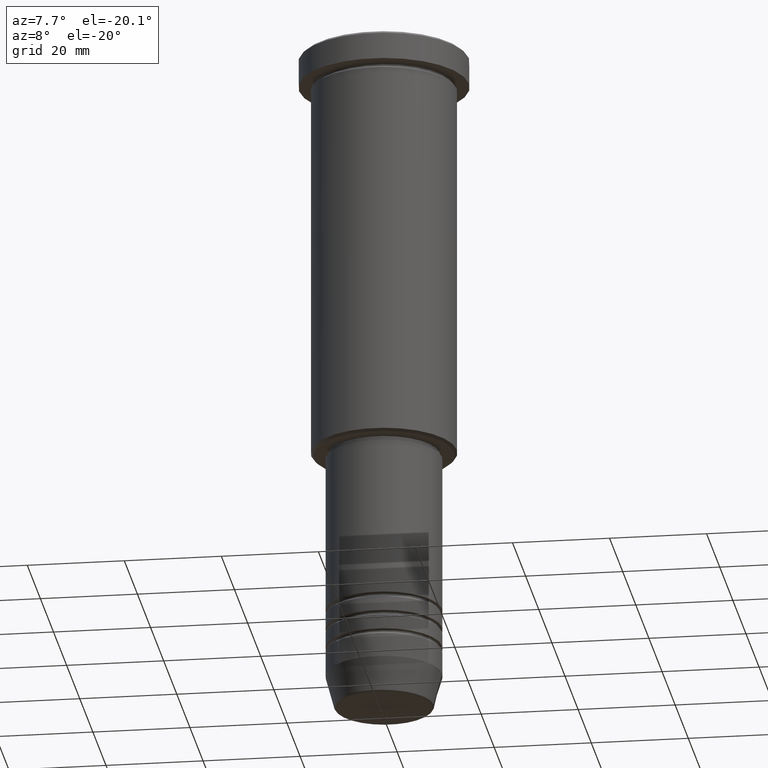
[diagram: clean part render]
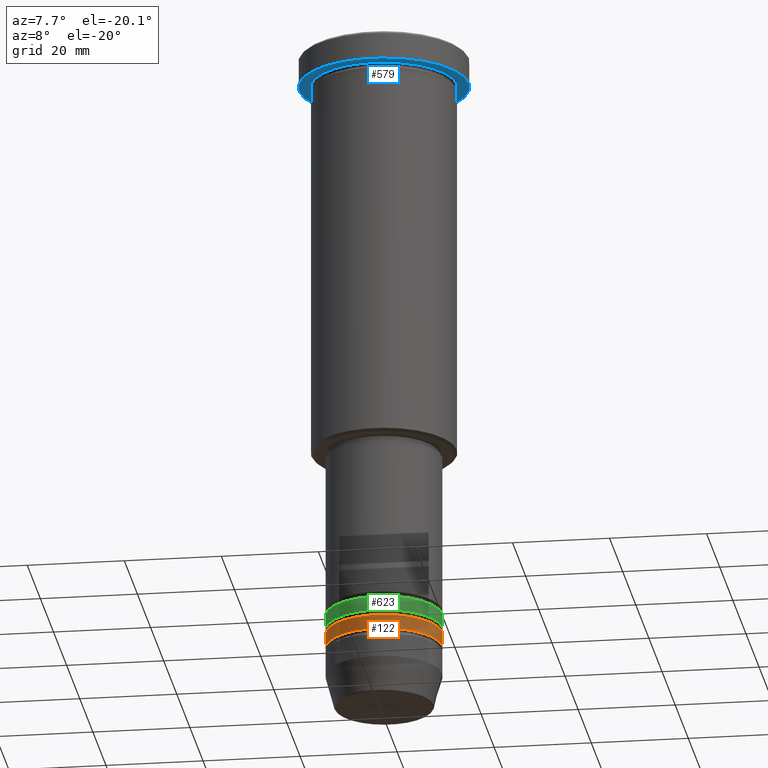
[diagram: same view with three faces highlighted in distinct colors, each labeled with its STEP entity id]
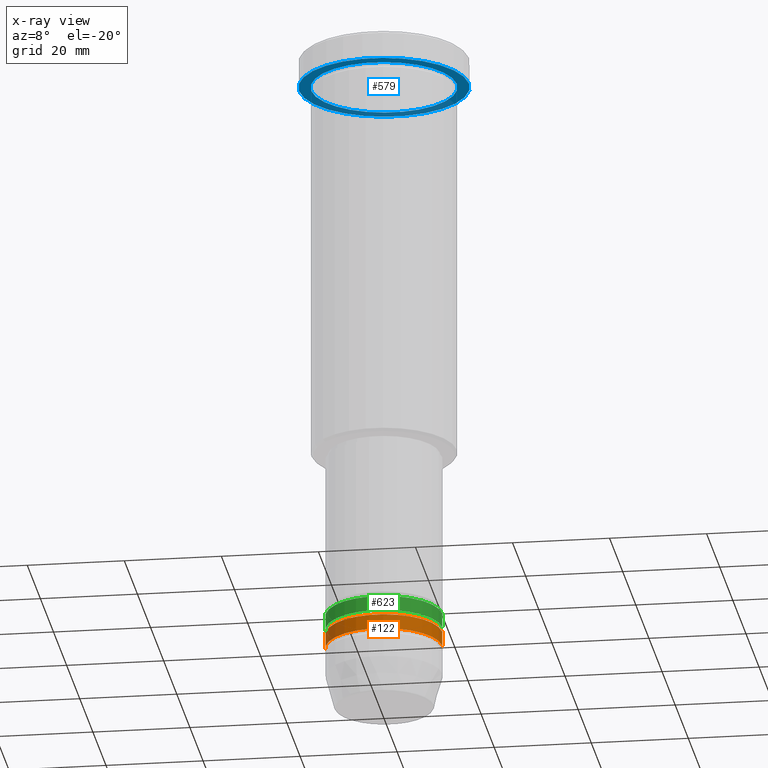
[diagram: x-ray of the same camera — body ghosted, the three highlighted faces saturated]
A machine part, auxiliary view with three faces highlighted in distinct colors.
The next image is the same camera in x-ray (body ghosted, the three faces saturated) — at least one of them is partly hidden behind the body in this view.
Their STEP definitions:

[orange] entity #122 — the highlighted cylindrical surface (partial cylindrical patch) has radius 12 mm, axis along (-0, -0, 1).
#13 = EDGE_CURVE ( 'NONE', #220, #150, #363, .T. ) ;
#17 = LINE ( 'NONE', #939, #967 ) ;
#18 = ORIENTED_EDGE ( 'NONE', *, *, #839, .T. ) ;
#51 = CARTESIAN_POINT ( 'NONE',  ( -12.00000000000000000, 1.469576158976823947E-15, 0.000000000000000000 ) ) ;
#103 = CARTESIAN_POINT ( 'NONE',  ( 0.000000000000000000, 0.000000000000000000, -127.9999999999998863 ) ) ;
#116 = DIRECTION ( 'NONE',  ( -0.000000000000000000, -0.000000000000000000, 1.000000000000000000 ) ) ;
#122 = ADVANCED_FACE ( 'NONE', ( #453 ), #629, .T. ) ;
#149 = ORIENTED_EDGE ( 'NONE', *, *, #13, .F. ) ;
#150 = VERTEX_POINT ( 'NONE', #359 ) ;
#167 = CARTESIAN_POINT ( 'NONE',  ( 12.00000000000000000, 0.000000000000000000, -127.9999999999998863 ) ) ;
#184 = DIRECTION ( 'NONE',  ( 1.000000000000000000, 0.000000000000000000, 0.000000000000000000 ) ) ;
#190 = DIRECTION ( 'NONE',  ( -0.000000000000000000, -0.000000000000000000, 1.000000000000000000 ) ) ;
#220 = VERTEX_POINT ( 'NONE', #277 ) ;
#221 = AXIS2_PLACEMENT_3D ( 'NONE', #103, #190, #184 ) ;
#234 = EDGE_CURVE ( 'NONE', #362, #735, #356, .T. ) ;
#261 = DIRECTION ( 'NONE',  ( -0.000000000000000000, -0.000000000000000000, 1.000000000000000000 ) ) ;
#277 = CARTESIAN_POINT ( 'NONE',  ( -12.00000000000000000, 1.469576158976823947E-15, -124.9999999999998863 ) ) ;
#329 = DIRECTION ( 'NONE',  ( -0.000000000000000000, -0.000000000000000000, 1.000000000000000000 ) ) ;
#356 = CIRCLE ( 'NONE', #221, 12.00000000000000000 ) ;
#359 = CARTESIAN_POINT ( 'NONE',  ( 12.00000000000000000, 0.000000000000000000, -124.9999999999998863 ) ) ;
#362 = VERTEX_POINT ( 'NONE', #1107 ) ;
#363 = CIRCLE ( 'NONE', #1034, 12.00000000000000000 ) ;
#447 = DIRECTION ( 'NONE',  ( 1.000000000000000000, 0.000000000000000000, 0.000000000000000000 ) ) ;
#453 = FACE_OUTER_BOUND ( 'NONE', #995, .T. ) ;
#460 = ORIENTED_EDGE ( 'NONE', *, *, #234, .T. ) ;
#522 = ORIENTED_EDGE ( 'NONE', *, *, #987, .F. ) ;
#616 = CARTESIAN_POINT ( 'NONE',  ( 0.000000000000000000, 0.000000000000000000, 0.000000000000000000 ) ) ;
#619 = VECTOR ( 'NONE', #329, 1000.000000000000000 ) ;
#629 = CYLINDRICAL_SURFACE ( 'NONE', #1103, 12.00000000000000000 ) ;
#693 = LINE ( 'NONE', #51, #619 ) ;
#735 = VERTEX_POINT ( 'NONE', #167 ) ;
#839 = EDGE_CURVE ( 'NONE', #735, #150, #17, .T. ) ;
#891 = DIRECTION ( 'NONE',  ( 1.000000000000000000, 0.000000000000000000, 0.000000000000000000 ) ) ;
#939 = CARTESIAN_POINT ( 'NONE',  ( 12.00000000000000000, 0.000000000000000000, 0.000000000000000000 ) ) ;
#967 = VECTOR ( 'NONE', #116, 1000.000000000000000 ) ;
#987 = EDGE_CURVE ( 'NONE', #362, #220, #693, .T. ) ;
#993 = DIRECTION ( 'NONE',  ( -0.000000000000000000, -0.000000000000000000, 1.000000000000000000 ) ) ;
#995 = EDGE_LOOP ( 'NONE', ( #522, #460, #18, #149 ) ) ;
#1034 = AXIS2_PLACEMENT_3D ( 'NONE', #1066, #993, #447 ) ;
#1066 = CARTESIAN_POINT ( 'NONE',  ( 0.000000000000000000, 0.000000000000000000, -124.9999999999998863 ) ) ;
#1103 = AXIS2_PLACEMENT_3D ( 'NONE', #616, #261, #891 ) ;
#1107 = CARTESIAN_POINT ( 'NONE',  ( -12.00000000000000000, 1.469576158976823947E-15, -127.9999999999998863 ) ) ;

[blue] entity #579 — the highlighted planar face has unit normal (0, 0, -1).
#12 = AXIS2_PLACEMENT_3D ( 'NONE', #72, #610, #830 ) ;
#57 = VERTEX_POINT ( 'NONE', #817 ) ;
#72 = CARTESIAN_POINT ( 'NONE',  ( 0.000000000000000000, 0.000000000000000000, -5.999999999999995559 ) ) ;
#110 = DIRECTION ( 'NONE',  ( 1.000000000000000000, 0.000000000000000000, 0.000000000000000000 ) ) ;
#115 = CARTESIAN_POINT ( 'NONE',  ( 0.000000000000000000, 0.000000000000000000, -5.999999999999995559 ) ) ;
#145 = DIRECTION ( 'NONE',  ( 1.000000000000000000, 0.000000000000000000, 0.000000000000000000 ) ) ;
#162 = AXIS2_PLACEMENT_3D ( 'NONE', #638, #290, #110 ) ;
#163 = CIRCLE ( 'NONE', #705, 15.00000000000000000 ) ;
#236 = CARTESIAN_POINT ( 'NONE',  ( 0.000000000000000000, 0.000000000000000000, -5.999999999999995559 ) ) ;
#282 = CARTESIAN_POINT ( 'NONE',  ( -15.00000000000000000, 0.000000000000000000, -5.999999999999994671 ) ) ;
#290 = DIRECTION ( 'NONE',  ( -0.000000000000000000, -0.000000000000000000, 1.000000000000000000 ) ) ;
#300 = ORIENTED_EDGE ( 'NONE', *, *, #1177, .F. ) ;
#309 = ORIENTED_EDGE ( 'NONE', *, *, #311, .T. ) ;
#311 = EDGE_CURVE ( 'NONE', #510, #1130, #163, .T. ) ;
#321 = CIRCLE ( 'NONE', #821, 17.50000000000000000 ) ;
#365 = DIRECTION ( 'NONE',  ( -1.000000000000000000, 0.000000000000000000, 0.000000000000000000 ) ) ;
#370 = DIRECTION ( 'NONE',  ( -0.000000000000000000, -0.000000000000000000, 1.000000000000000000 ) ) ;
#397 = ORIENTED_EDGE ( 'NONE', *, *, #459, .T. ) ;
#405 = VERTEX_POINT ( 'NONE', #1038 ) ;
#459 = EDGE_CURVE ( 'NONE', #1130, #510, #1179, .T. ) ;
#510 = VERTEX_POINT ( 'NONE', #282 ) ;
#511 = FACE_BOUND ( 'NONE', #978, .T. ) ;
#561 = PLANE ( 'NONE',  #588 ) ;
#562 = EDGE_CURVE ( 'NONE', #405, #57, #321, .T. ) ;
#579 = ADVANCED_FACE ( 'NONE', ( #511, #889 ), #561, .T. ) ;
#581 = CARTESIAN_POINT ( 'NONE',  ( 0.000000000000000000, 17.50000000000000000, -5.999999999999995559 ) ) ;
#588 = AXIS2_PLACEMENT_3D ( 'NONE', #581, #762, #927 ) ;
#610 = DIRECTION ( 'NONE',  ( -0.000000000000000000, -0.000000000000000000, 1.000000000000000000 ) ) ;
#638 = CARTESIAN_POINT ( 'NONE',  ( 0.000000000000000000, 0.000000000000000000, -5.999999999999995559 ) ) ;
#650 = CARTESIAN_POINT ( 'NONE',  ( 15.00000000000000000, 1.836970198721029589E-15, -5.999999999999994671 ) ) ;
#699 = ORIENTED_EDGE ( 'NONE', *, *, #562, .F. ) ;
#705 = AXIS2_PLACEMENT_3D ( 'NONE', #115, #370, #365 ) ;
#762 = DIRECTION ( 'NONE',  ( 0.000000000000000000, 0.000000000000000000, -1.000000000000000000 ) ) ;
#794 = CIRCLE ( 'NONE', #162, 17.50000000000000000 ) ;
#817 = CARTESIAN_POINT ( 'NONE',  ( 17.50000000000000000, 0.000000000000000000, -5.999999999999995559 ) ) ;
#821 = AXIS2_PLACEMENT_3D ( 'NONE', #236, #1057, #145 ) ;
#830 = DIRECTION ( 'NONE',  ( -1.000000000000000000, 0.000000000000000000, 0.000000000000000000 ) ) ;
#875 = EDGE_LOOP ( 'NONE', ( #300, #699 ) ) ;
#889 = FACE_OUTER_BOUND ( 'NONE', #875, .T. ) ;
#927 = DIRECTION ( 'NONE',  ( -1.000000000000000000, 0.000000000000000000, -0.000000000000000000 ) ) ;
#978 = EDGE_LOOP ( 'NONE', ( #309, #397 ) ) ;
#1038 = CARTESIAN_POINT ( 'NONE',  ( -17.50000000000000000, 2.143131898507868248E-15, -5.999999999999995559 ) ) ;
#1057 = DIRECTION ( 'NONE',  ( -0.000000000000000000, -0.000000000000000000, 1.000000000000000000 ) ) ;
#1130 = VERTEX_POINT ( 'NONE', #650 ) ;
#1177 = EDGE_CURVE ( 'NONE', #57, #405, #794, .T. ) ;
#1179 = CIRCLE ( 'NONE', #12, 15.00000000000000000 ) ;

[green] entity #623 — the highlighted cylindrical surface (partial cylindrical patch) has radius 12 mm, axis along (-0, -0, 1).
#66 = CARTESIAN_POINT ( 'NONE',  ( -12.00000000000000178, 1.469576158976824144E-15, 0.000000000000000000 ) ) ;
#91 = DIRECTION ( 'NONE',  ( -0.000000000000000000, -0.000000000000000000, 1.000000000000000000 ) ) ;
#111 = CARTESIAN_POINT ( 'NONE',  ( 0.000000000000000000, 0.000000000000000000, -123.9999999999999147 ) ) ;
#152 = EDGE_CURVE ( 'NONE', #533, #422, #980, .T. ) ;
#164 = DIRECTION ( 'NONE',  ( 1.000000000000000000, 0.000000000000000000, 0.000000000000000000 ) ) ;
#197 = EDGE_CURVE ( 'NONE', #533, #1151, #838, .T. ) ;
#200 = CARTESIAN_POINT ( 'NONE',  ( 12.00000000000000178, 0.000000000000000000, 0.000000000000000000 ) ) ;
#215 = CYLINDRICAL_SURFACE ( 'NONE', #456, 12.00000000000000178 ) ;
#242 = CARTESIAN_POINT ( 'NONE',  ( -12.00000000000000000, 1.469576158976824144E-15, -120.9999999999999005 ) ) ;
#253 = DIRECTION ( 'NONE',  ( -0.000000000000000000, -0.000000000000000000, 1.000000000000000000 ) ) ;
#293 = ORIENTED_EDGE ( 'NONE', *, *, #152, .F. ) ;
#316 = AXIS2_PLACEMENT_3D ( 'NONE', #111, #733, #558 ) ;
#357 = CARTESIAN_POINT ( 'NONE',  ( 0.000000000000000000, 0.000000000000000000, 0.000000000000000000 ) ) ;
#372 = ORIENTED_EDGE ( 'NONE', *, *, #446, .F. ) ;
#381 = DIRECTION ( 'NONE',  ( -0.000000000000000000, -0.000000000000000000, 1.000000000000000000 ) ) ;
#419 = CIRCLE ( 'NONE', #1049, 12.00000000000000000 ) ;
#422 = VERTEX_POINT ( 'NONE', #242 ) ;
#439 = ORIENTED_EDGE ( 'NONE', *, *, #197, .T. ) ;
#446 = EDGE_CURVE ( 'NONE', #422, #679, #419, .T. ) ;
#456 = AXIS2_PLACEMENT_3D ( 'NONE', #357, #381, #865 ) ;
#533 = VERTEX_POINT ( 'NONE', #682 ) ;
#558 = DIRECTION ( 'NONE',  ( 1.000000000000000000, 0.000000000000000000, 0.000000000000000000 ) ) ;
#623 = ADVANCED_FACE ( 'NONE', ( #935 ), #215, .T. ) ;
#657 = LINE ( 'NONE', #200, #1133 ) ;
#679 = VERTEX_POINT ( 'NONE', #1176 ) ;
#682 = CARTESIAN_POINT ( 'NONE',  ( -12.00000000000000533, 1.469576158976824539E-15, -123.9999999999999147 ) ) ;
#733 = DIRECTION ( 'NONE',  ( -0.000000000000000000, -0.000000000000000000, 1.000000000000000000 ) ) ;
#751 = CARTESIAN_POINT ( 'NONE',  ( 12.00000000000000355, 0.000000000000000000, -123.9999999999999147 ) ) ;
#784 = ORIENTED_EDGE ( 'NONE', *, *, #1123, .T. ) ;
#786 = CARTESIAN_POINT ( 'NONE',  ( 0.000000000000000000, 0.000000000000000000, -120.9999999999999005 ) ) ;
#800 = DIRECTION ( 'NONE',  ( -0.000000000000000000, -0.000000000000000000, 1.000000000000000000 ) ) ;
#838 = CIRCLE ( 'NONE', #316, 12.00000000000000355 ) ;
#865 = DIRECTION ( 'NONE',  ( 1.000000000000000000, 0.000000000000000000, 0.000000000000000000 ) ) ;
#935 = FACE_OUTER_BOUND ( 'NONE', #1097, .T. ) ;
#980 = LINE ( 'NONE', #66, #1007 ) ;
#1007 = VECTOR ( 'NONE', #253, 1000.000000000000000 ) ;
#1049 = AXIS2_PLACEMENT_3D ( 'NONE', #786, #800, #164 ) ;
#1097 = EDGE_LOOP ( 'NONE', ( #293, #439, #784, #372 ) ) ;
#1123 = EDGE_CURVE ( 'NONE', #1151, #679, #657, .T. ) ;
#1133 = VECTOR ( 'NONE', #91, 1000.000000000000000 ) ;
#1151 = VERTEX_POINT ( 'NONE', #751 ) ;
#1176 = CARTESIAN_POINT ( 'NONE',  ( 12.00000000000000000, 0.000000000000000000, -120.9999999999999005 ) ) ;